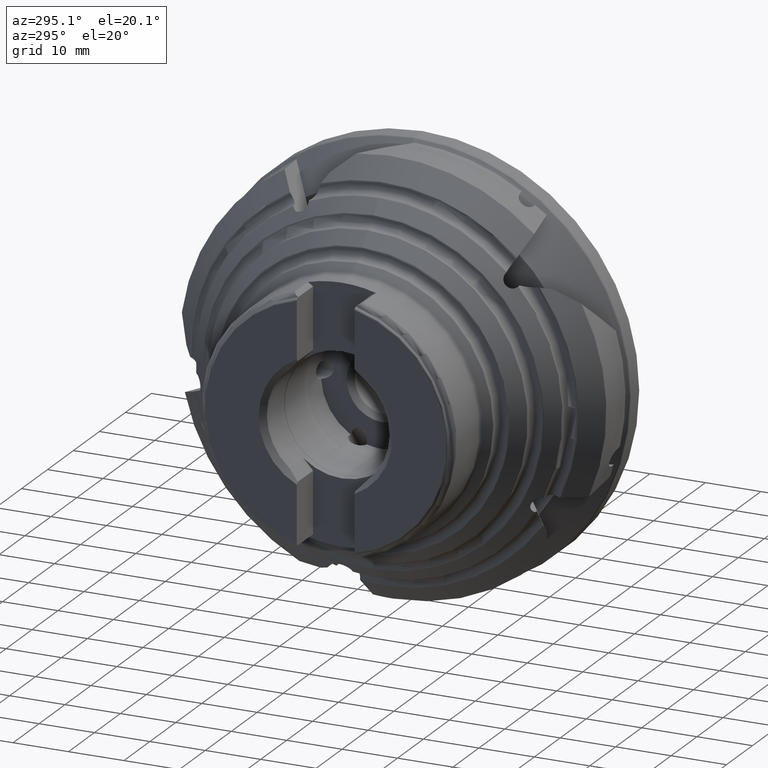
[diagram: clean part render]
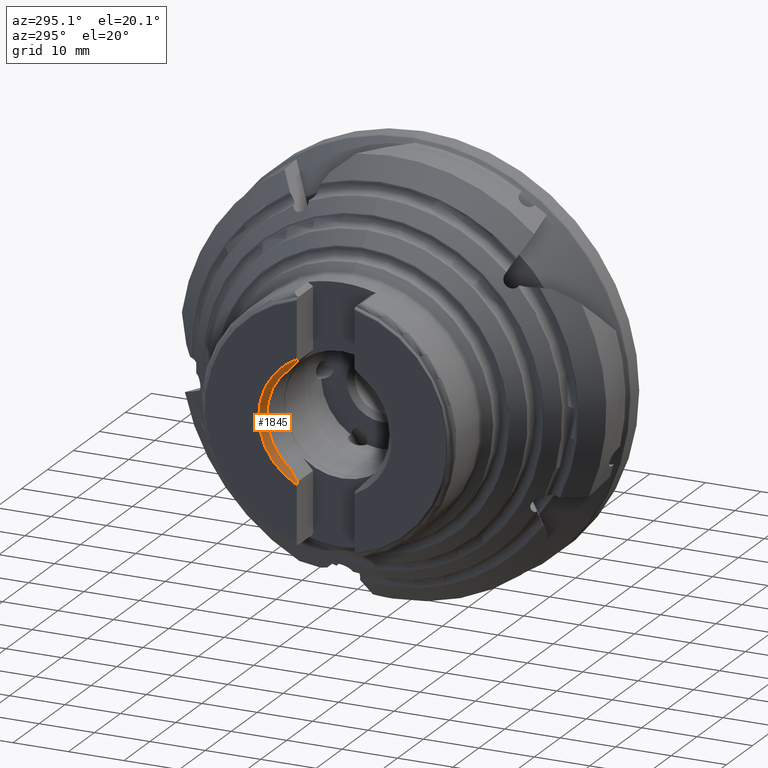
[diagram: same view with one face highlighted and labeled with its STEP entity id]
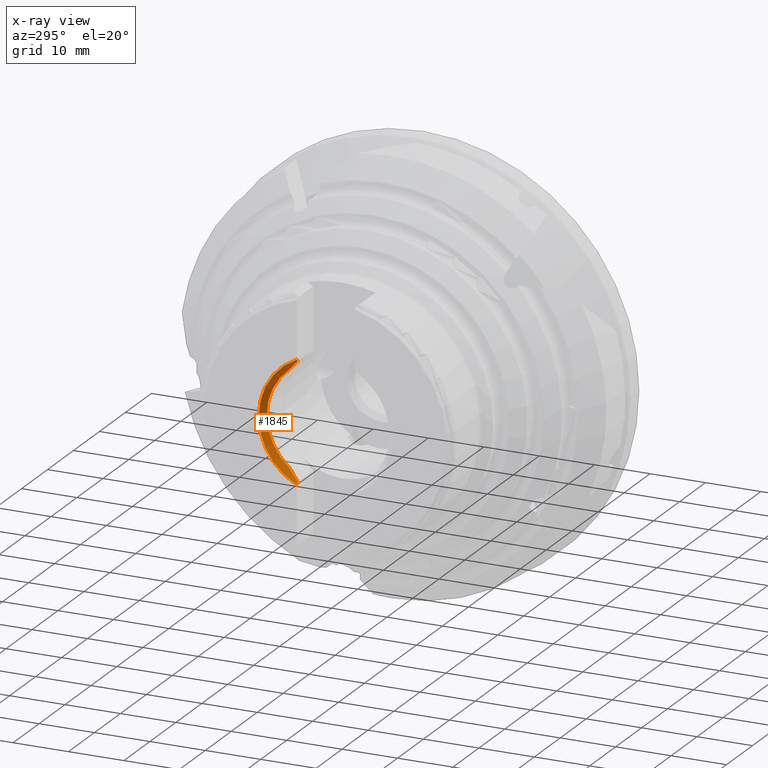
[diagram: x-ray of the same camera — body ghosted, the highlighted face saturated]
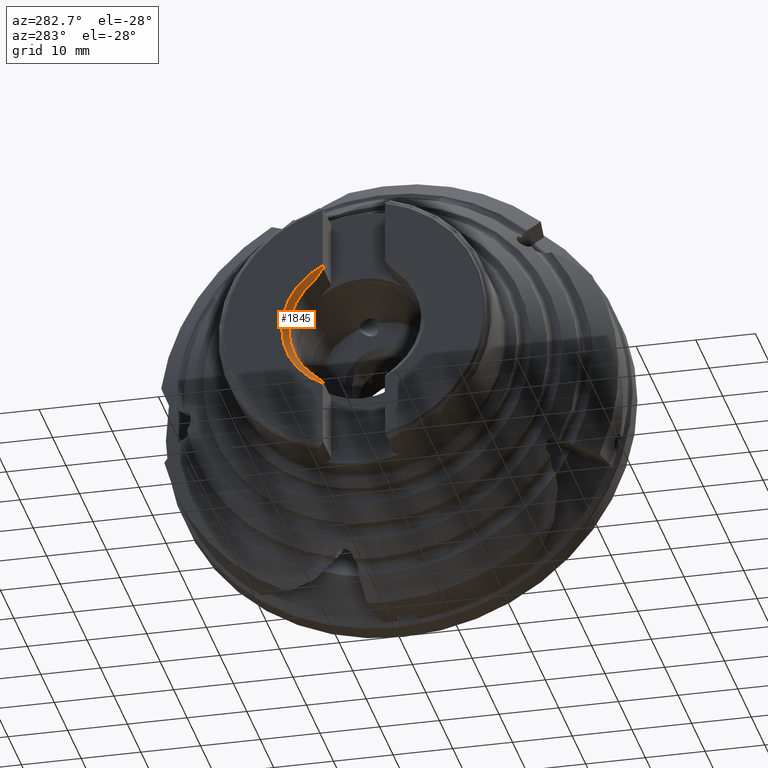
[diagram: same view with one face highlighted and labeled with its STEP entity id]
A machine part, auxiliary view. The second image highlights one B-rep face of the part: STEP entity #1845.
The next image is the same camera in x-ray: the body ghosted, the highlighted face saturated — about 0% of this face is hidden behind the body in this view.
A second angle (auxiliary view) of the same face is appended — the face is thin or edge-on in the first view.
In plain terms, the highlighted conical surface has half-angle 45 deg.
Its self-contained STEP definition (entity closure, byte-faithful):
#282 = VERTEX_POINT ( 'NONE', #2484 ) ;
#316 = VERTEX_POINT ( 'NONE', #2488 ) ;
#317 = VERTEX_POINT ( 'NONE', #2491 ) ;
#321 = VERTEX_POINT ( 'NONE', #5863 ) ;
#323 = VERTEX_POINT ( 'NONE', #5867 ) ;
#324 = VERTEX_POINT ( 'NONE', #5877 ) ;
#1103 = CIRCLE ( 'NONE', #6450, 11.07499999999999400 ) ;
#1115 = CIRCLE ( 'NONE', #6471, 12.07499999999999600 ) ;
#1292 = EDGE_LOOP ( 'NONE', ( #9858, #9861, #9860, #9838, #9839, #10082 ) ) ;
#1845 = ADVANCED_FACE ( 'NONE', ( #5380 ), #5269, .F. ) ;
#2484 = CARTESIAN_POINT ( 'NONE',  ( -43.64999999999999900, 5.200000000000000200, -10.89796425943854500 ) ) ;
#2488 = CARTESIAN_POINT ( 'NONE',  ( -43.29509713783752300, 5.200000000000000200, 10.50336502842535000 ) ) ;
#2491 = CARTESIAN_POINT ( 'NONE',  ( -43.29509713784031500, 5.200000000000000200, -10.50336502842841200 ) ) ;
#2641 = EDGE_CURVE ( 'NONE', #282, #317, #6743, .T. ) ;
#2656 = EDGE_CURVE ( 'NONE', #317, #321, #5676, .T. ) ;
#2725 = EDGE_CURVE ( 'NONE', #323, #316, #5770, .T. ) ;
#2726 = EDGE_CURVE ( 'NONE', #321, #323, #1103, .T. ) ;
#2727 = EDGE_CURVE ( 'NONE', #316, #324, #5797, .T. ) ;
#2758 = EDGE_CURVE ( 'NONE', #282, #324, #1115, .T. ) ;
#3098 = DIRECTION ( 'NONE',  ( 0.0000000000000000000, 0.0000000000000000000, 1.000000000000000000 ) ) ;
#3100 = CARTESIAN_POINT ( 'NONE',  ( -42.64999999999999900, 0.0000000000000000000, 0.0000000000000000000 ) ) ;
#3101 = DIRECTION ( 'NONE',  ( -1.000000000000000000, 0.0000000000000000000, 0.0000000000000000000 ) ) ;
#4951 = AXIS2_PLACEMENT_3D ( 'NONE', #3100, #3101, #3098 ) ;
#5269 = CONICAL_SURFACE ( 'NONE', #4951, 11.07499999999999400, 0.7853981633974482800 ) ;
#5380 = FACE_OUTER_BOUND ( 'NONE', #1292, .T. ) ;
#5676 = B_SPLINE_CURVE_WITH_KNOTS ( 'NONE', 3,
 ( #7100, #7101, #7106, #7107 ),
 .UNSPECIFIED., .F., .F.,
 ( 4, 4 ),
 ( 2.916983948842648400E-015, 0.002652193350376521400 ),
 .UNSPECIFIED. ) ;
#5770 = B_SPLINE_CURVE_WITH_KNOTS ( 'NONE', 3,
 ( #7362, #7363, #7368, #7369 ),
 .UNSPECIFIED., .F., .F.,
 ( 4, 4 ),
 ( 6.774311733017760200E-018, 0.002652193350370756000 ),
 .UNSPECIFIED. ) ;
#5797 = B_SPLINE_CURVE_WITH_KNOTS ( 'NONE', 3,
 ( #7370, #7371, #7376, #7377 ),
 .UNSPECIFIED., .F., .F.,
 ( 4, 4 ),
 ( 0.04614636187794674000, 0.04666258379225236800 ),
 .UNSPECIFIED. ) ;
#5863 = CARTESIAN_POINT ( 'NONE',  ( -42.64999999999999900, 6.952914283410233800, -8.620476087058639400 ) ) ;
#5867 = CARTESIAN_POINT ( 'NONE',  ( -42.64999999999999900, 6.952914283410233800, 8.620476087058639400 ) ) ;
#5877 = CARTESIAN_POINT ( 'NONE',  ( -43.64999999999999900, 5.200000000000000200, 10.89796425943854500 ) ) ;
#6450 = AXIS2_PLACEMENT_3D ( 'NONE', #7372, #7373, #7374 ) ;
#6471 = AXIS2_PLACEMENT_3D ( 'NONE', #7986, #7987, #7988 ) ;
#6743 = B_SPLINE_CURVE_WITH_KNOTS ( 'NONE', 3,
 ( #7046, #7033, #7047, #7048 ),
 .UNSPECIFIED., .F., .F.,
 ( 4, 4 ),
 ( 0.02096968024183171900, 0.02150038972590178500 ),
 .UNSPECIFIED. ) ;
#7033 = CARTESIAN_POINT ( 'NONE',  ( -43.53147104173344700, 5.200000000000000200, -10.76663356895393900 ) ) ;
#7046 = CARTESIAN_POINT ( 'NONE',  ( -43.64999999999999900, 5.200000000000000200, -10.89796425943854500 ) ) ;
#7047 = CARTESIAN_POINT ( 'NONE',  ( -43.41316244721608100, 5.200000000000000200, -10.63510727396093900 ) ) ;
#7048 = CARTESIAN_POINT ( 'NONE',  ( -43.29509713784031500, 5.200000000000000200, -10.50336502842841200 ) ) ;
#7100 = CARTESIAN_POINT ( 'NONE',  ( -43.29509713784031500, 5.200000000000000200, -10.50336502842841200 ) ) ;
#7101 = CARTESIAN_POINT ( 'NONE',  ( -42.99905446777533800, 5.770462705683725000, -9.890603794092284000 ) ) ;
#7106 = CARTESIAN_POINT ( 'NONE',  ( -42.77490903154044600, 6.353210338233253700, -9.264646733142248200 ) ) ;
#7107 = CARTESIAN_POINT ( 'NONE',  ( -42.64999999999999900, 6.952914283410233800, -8.620476087058639400 ) ) ;
#7362 = CARTESIAN_POINT ( 'NONE',  ( -42.64999999999999900, 6.952914283410233800, 8.620476087058639400 ) ) ;
#7363 = CARTESIAN_POINT ( 'NONE',  ( -42.77490903154036800, 6.353210338233596500, 9.264646733141882300 ) ) ;
#7368 = CARTESIAN_POINT ( 'NONE',  ( -42.99905446778841900, 5.770462705684774800, 9.890603794091156000 ) ) ;
#7369 = CARTESIAN_POINT ( 'NONE',  ( -43.29509713783752300, 5.200000000000000200, 10.50336502842535000 ) ) ;
#7370 = CARTESIAN_POINT ( 'NONE',  ( -43.29509713783752300, 5.200000000000000200, 10.50336502842535000 ) ) ;
#7371 = CARTESIAN_POINT ( 'NONE',  ( -43.41315459714261500, 5.200000000000000200, 10.63509851451836700 ) ) ;
#7372 = CARTESIAN_POINT ( 'NONE',  ( -42.64999999999999900, 0.0000000000000000000, 0.0000000000000000000 ) ) ;
#7373 = DIRECTION ( 'NONE',  ( 1.000000000000000000, -0.0000000000000000000, -0.0000000000000000000 ) ) ;
#7374 = DIRECTION ( 'NONE',  ( 0.0000000000000000000, 0.0000000000000000000, -1.000000000000000000 ) ) ;
#7376 = CARTESIAN_POINT ( 'NONE',  ( -43.53146341536322000, 5.200000000000000200, 10.76662511889681900 ) ) ;
#7377 = CARTESIAN_POINT ( 'NONE',  ( -43.64999999999999900, 5.200000000000000200, 10.89796425943854500 ) ) ;
#7986 = CARTESIAN_POINT ( 'NONE',  ( -43.64999999999999900, 0.0000000000000000000, 0.0000000000000000000 ) ) ;
#7987 = DIRECTION ( 'NONE',  ( 1.000000000000000000, -0.0000000000000000000, -0.0000000000000000000 ) ) ;
#7988 = DIRECTION ( 'NONE',  ( 0.0000000000000000000, 0.0000000000000000000, -1.000000000000000000 ) ) ;
#9838 = ORIENTED_EDGE ( 'NONE', *, *, #2758, .F. ) ;
#9839 = ORIENTED_EDGE ( 'NONE', *, *, #2641, .T. ) ;
#9858 = ORIENTED_EDGE ( 'NONE', *, *, #2726, .T. ) ;
#9860 = ORIENTED_EDGE ( 'NONE', *, *, #2727, .T. ) ;
#9861 = ORIENTED_EDGE ( 'NONE', *, *, #2725, .T. ) ;
#10082 = ORIENTED_EDGE ( 'NONE', *, *, #2656, .T. ) ;